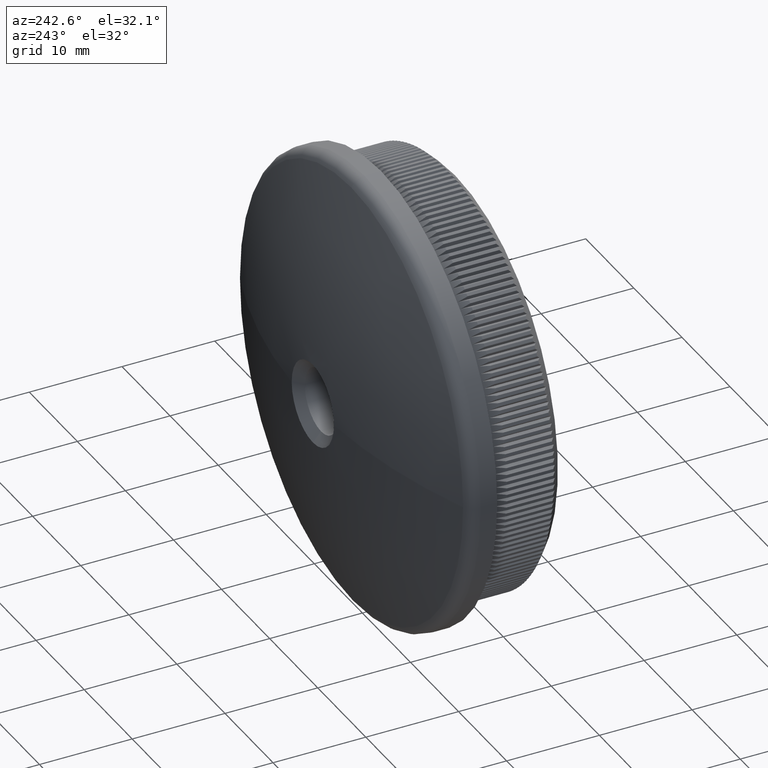
[diagram: clean part render]
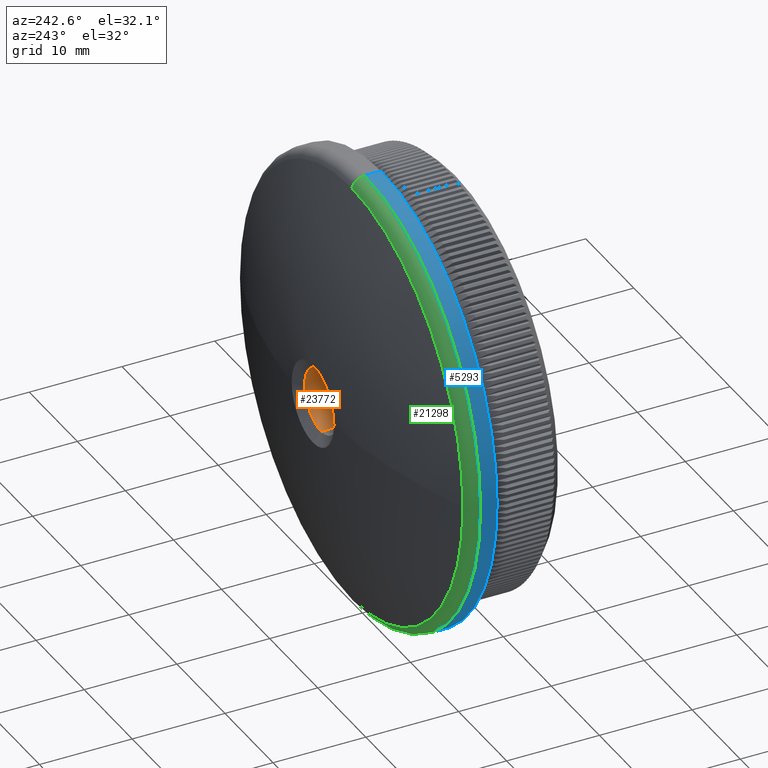
[diagram: same view with three faces highlighted in distinct colors, each labeled with its STEP entity id]
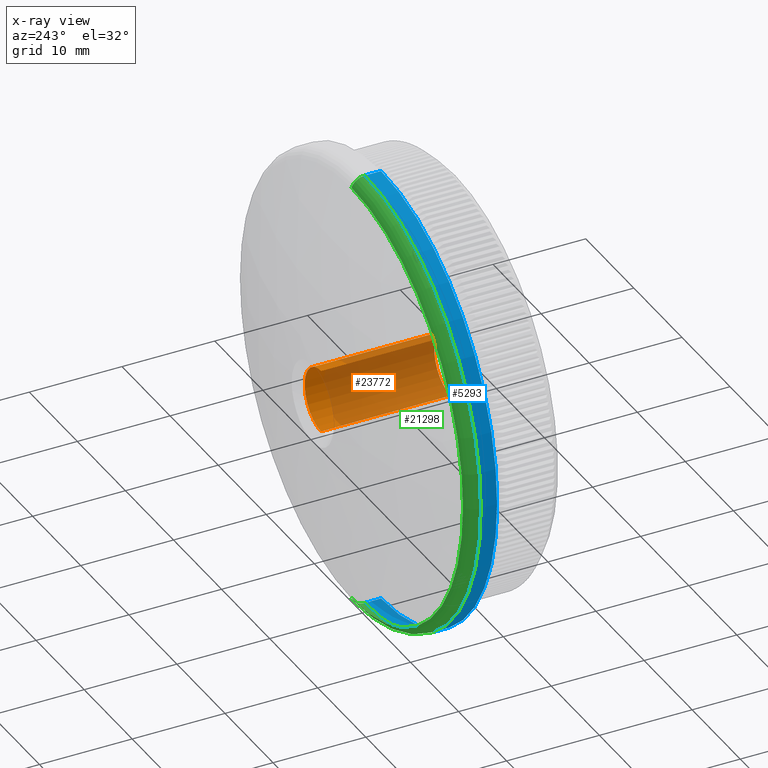
[diagram: x-ray of the same camera — body ghosted, the three highlighted faces saturated]
A machine part, auxiliary view with three faces highlighted in distinct colors.
The next image is the same camera in x-ray (body ghosted, the three faces saturated) — at least one of them is partly hidden behind the body in this view.
Their STEP definitions:

[orange] entity #23772 — the highlighted cylindrical surface (edge-blend (fillet) strip) has radius 3.4 mm, axis along (-0, -1, -0).
#2123 = CARTESIAN_POINT ( 'NONE',  ( 0.0000000000000000000, 14.45906987097148100, 0.0000000000000000000 ) ) ;
#3862 = VECTOR ( 'NONE', #17896, 1000.000000000000000 ) ;
#5364 = EDGE_CURVE ( 'NONE', #11681, #9426, #30022, .T. ) ;
#5418 = CARTESIAN_POINT ( 'NONE',  ( 0.0000000000000000000, 14.45906987097148100, -3.399999999999995500 ) ) ;
#6036 = EDGE_CURVE ( 'NONE', #11681, #20876, #31165, .T. ) ;
#7930 = LINE ( 'NONE', #29598, #30862 ) ;
#8613 = AXIS2_PLACEMENT_3D ( 'NONE', #21303, #25971, #15880 ) ;
#9426 = VERTEX_POINT ( 'NONE', #23400 ) ;
#10006 = DIRECTION ( 'NONE',  ( 0.0000000000000000000, 0.0000000000000000000, -1.000000000000000000 ) ) ;
#10114 = DIRECTION ( 'NONE',  ( 0.0000000000000000000, -1.000000000000000000, 0.0000000000000000000 ) ) ;
#10228 = CARTESIAN_POINT ( 'NONE',  ( 0.0000000000000000000, 0.4999999999999891800, 0.0000000000000000000 ) ) ;
#11625 = FACE_OUTER_BOUND ( 'NONE', #21661, .T. ) ;
#11681 = VERTEX_POINT ( 'NONE', #31079 ) ;
#12229 = DIRECTION ( 'NONE',  ( 0.0000000000000000000, 0.0000000000000000000, 1.000000000000000000 ) ) ;
#13011 = CARTESIAN_POINT ( 'NONE',  ( 0.0000000000000000000, 0.4999999999999891800, -3.399999999999995500 ) ) ;
#13640 = CIRCLE ( 'NONE', #26234, 3.399999999999995500 ) ;
#14278 = DIRECTION ( 'NONE',  ( -0.0000000000000000000, -1.000000000000000000, -0.0000000000000000000 ) ) ;
#14698 = AXIS2_PLACEMENT_3D ( 'NONE', #2123, #22336, #12229 ) ;
#15344 = CARTESIAN_POINT ( 'NONE',  ( 4.163799117100995600E-016, 0.0000000000000000000, 3.399999999999995500 ) ) ;
#15880 = DIRECTION ( 'NONE',  ( 0.0000000000000000000, 0.0000000000000000000, -1.000000000000000000 ) ) ;
#17159 = ORIENTED_EDGE ( 'NONE', *, *, #6036, .T. ) ;
#17896 = DIRECTION ( 'NONE',  ( -0.0000000000000000000, -1.000000000000000000, -0.0000000000000000000 ) ) ;
#20047 = ORIENTED_EDGE ( 'NONE', *, *, #5364, .F. ) ;
#20876 = VERTEX_POINT ( 'NONE', #5418 ) ;
#21303 = CARTESIAN_POINT ( 'NONE',  ( 0.0000000000000000000, 0.0000000000000000000, 0.0000000000000000000 ) ) ;
#21661 = EDGE_LOOP ( 'NONE', ( #20047, #17159, #26153, #24270 ) ) ;
#22336 = DIRECTION ( 'NONE',  ( 0.0000000000000000000, 1.000000000000000000, 0.0000000000000000000 ) ) ;
#22718 = EDGE_CURVE ( 'NONE', #23728, #9426, #13640, .T. ) ;
#23179 = CYLINDRICAL_SURFACE ( 'NONE', #8613, 3.399999999999995500 ) ;
#23400 = CARTESIAN_POINT ( 'NONE',  ( 4.163799117100995600E-016, 0.4999999999999891800, 3.399999999999995500 ) ) ;
#23728 = VERTEX_POINT ( 'NONE', #13011 ) ;
#23772 = ADVANCED_FACE ( 'NONE', ( #11625 ), #23179, .F. ) ;
#24270 = ORIENTED_EDGE ( 'NONE', *, *, #22718, .T. ) ;
#25971 = DIRECTION ( 'NONE',  ( -0.0000000000000000000, -1.000000000000000000, -0.0000000000000000000 ) ) ;
#26153 = ORIENTED_EDGE ( 'NONE', *, *, #26416, .T. ) ;
#26234 = AXIS2_PLACEMENT_3D ( 'NONE', #10228, #10114, #10006 ) ;
#26416 = EDGE_CURVE ( 'NONE', #20876, #23728, #7930, .T. ) ;
#29598 = CARTESIAN_POINT ( 'NONE',  ( 0.0000000000000000000, 0.0000000000000000000, -3.399999999999995500 ) ) ;
#30022 = LINE ( 'NONE', #15344, #3862 ) ;
#30862 = VECTOR ( 'NONE', #14278, 1000.000000000000000 ) ;
#31079 = CARTESIAN_POINT ( 'NONE',  ( 4.163799117100995600E-016, 14.45906987097148100, 3.399999999999995500 ) ) ;
#31165 = CIRCLE ( 'NONE', #14698, 3.399999999999995500 ) ;

[blue] entity #5293 — the highlighted cylindrical surface (partial cylindrical patch) has radius 24.15 mm, axis along (-0, -1, -0).
#2863 = CARTESIAN_POINT ( 'NONE',  ( 2.957522019940858300E-015, 0.0000000000000000000, 24.15000000000000200 ) ) ;
#2894 = VERTEX_POINT ( 'NONE', #6538 ) ;
#3882 = VERTEX_POINT ( 'NONE', #9230 ) ;
#4821 = DIRECTION ( 'NONE',  ( 0.0000000000000000000, 0.0000000000000000000, -1.000000000000000000 ) ) ;
#4911 = LINE ( 'NONE', #24541, #20361 ) ;
#5293 = ADVANCED_FACE ( 'NONE', ( #27313 ), #30053, .T. ) ;
#5527 = DIRECTION ( 'NONE',  ( -0.0000000000000000000, -1.000000000000000000, -0.0000000000000000000 ) ) ;
#6538 = CARTESIAN_POINT ( 'NONE',  ( 0.0000000000000000000, 8.000000000000000000, -24.14999999999999900 ) ) ;
#8364 = EDGE_CURVE ( 'NONE', #8538, #2894, #20417, .T. ) ;
#8524 = CARTESIAN_POINT ( 'NONE',  ( 0.0000000000000000000, 9.780020886796899400, -24.15000000000000200 ) ) ;
#8538 = VERTEX_POINT ( 'NONE', #29230 ) ;
#9230 = CARTESIAN_POINT ( 'NONE',  ( 2.957522019940858300E-015, 9.780020886796899400, 24.15000000000000200 ) ) ;
#10627 = CARTESIAN_POINT ( 'NONE',  ( 0.0000000000000000000, 9.780020886796899400, 0.0000000000000000000 ) ) ;
#10872 = EDGE_CURVE ( 'NONE', #3882, #32610, #21547, .T. ) ;
#11048 = DIRECTION ( 'NONE',  ( -0.0000000000000000000, -1.000000000000000000, -0.0000000000000000000 ) ) ;
#11953 = EDGE_LOOP ( 'NONE', ( #14062, #12663, #30805, #23073 ) ) ;
#12663 = ORIENTED_EDGE ( 'NONE', *, *, #10872, .T. ) ;
#13197 = AXIS2_PLACEMENT_3D ( 'NONE', #15450, #23028, #4821 ) ;
#14062 = ORIENTED_EDGE ( 'NONE', *, *, #31795, .F. ) ;
#15450 = CARTESIAN_POINT ( 'NONE',  ( 0.0000000000000000000, 0.0000000000000000000, 0.0000000000000000000 ) ) ;
#17987 = VECTOR ( 'NONE', #5527, 1000.000000000000000 ) ;
#20066 = AXIS2_PLACEMENT_3D ( 'NONE', #25823, #28263, #25626 ) ;
#20361 = VECTOR ( 'NONE', #24641, 1000.000000000000000 ) ;
#20417 = CIRCLE ( 'NONE', #20066, 24.14999999999999900 ) ;
#21547 = CIRCLE ( 'NONE', #24151, 24.15000000000000200 ) ;
#23028 = DIRECTION ( 'NONE',  ( -0.0000000000000000000, -1.000000000000000000, -0.0000000000000000000 ) ) ;
#23073 = ORIENTED_EDGE ( 'NONE', *, *, #8364, .F. ) ;
#23571 = LINE ( 'NONE', #2863, #17987 ) ;
#23935 = EDGE_CURVE ( 'NONE', #32610, #2894, #4911, .T. ) ;
#24151 = AXIS2_PLACEMENT_3D ( 'NONE', #10627, #11048, #28774 ) ;
#24541 = CARTESIAN_POINT ( 'NONE',  ( 0.0000000000000000000, 0.0000000000000000000, -24.15000000000000200 ) ) ;
#24641 = DIRECTION ( 'NONE',  ( -0.0000000000000000000, -1.000000000000000000, -0.0000000000000000000 ) ) ;
#25626 = DIRECTION ( 'NONE',  ( 0.0000000000000000000, 0.0000000000000000000, -1.000000000000000000 ) ) ;
#25823 = CARTESIAN_POINT ( 'NONE',  ( 0.0000000000000000000, 8.000000000000000000, 0.0000000000000000000 ) ) ;
#27313 = FACE_OUTER_BOUND ( 'NONE', #11953, .T. ) ;
#28263 = DIRECTION ( 'NONE',  ( -0.0000000000000000000, -1.000000000000000000, -0.0000000000000000000 ) ) ;
#28774 = DIRECTION ( 'NONE',  ( 0.0000000000000000000, 0.0000000000000000000, -1.000000000000000000 ) ) ;
#29230 = CARTESIAN_POINT ( 'NONE',  ( 2.957522019940858300E-015, 8.000000000000000000, 24.14999999999999900 ) ) ;
#30053 = CYLINDRICAL_SURFACE ( 'NONE', #13197, 24.15000000000000200 ) ;
#30805 = ORIENTED_EDGE ( 'NONE', *, *, #23935, .T. ) ;
#31795 = EDGE_CURVE ( 'NONE', #3882, #8538, #23571, .T. ) ;
#32610 = VERTEX_POINT ( 'NONE', #8524 ) ;

[green] entity #21298 — the highlighted toroidal blend (fillet) surface has major radius 22.65 mm and minor (blend) radius 1.5 mm.
#710 = DIRECTION ( 'NONE',  ( 0.0000000000000000000, 1.000000000000000000, 0.0000000000000000000 ) ) ;
#1035 = EDGE_CURVE ( 'NONE', #9296, #25562, #1549, .T. ) ;
#1549 = CIRCLE ( 'NONE', #30585, 23.19018648117216600 ) ;
#3181 = DIRECTION ( 'NONE',  ( 0.0000000000000000000, 0.0000000000000000000, -1.000000000000000000 ) ) ;
#3301 = CARTESIAN_POINT ( 'NONE',  ( 2.898750392260314800E-015, 11.17937736945556700, 23.19018648117216600 ) ) ;
#3882 = VERTEX_POINT ( 'NONE', #9230 ) ;
#4641 = DIRECTION ( 'NONE',  ( -1.000000000000000000, 0.0000000000000000000, 0.0000000000000000000 ) ) ;
#5216 = AXIS2_PLACEMENT_3D ( 'NONE', #24935, #4641, #24712 ) ;
#5636 = AXIS2_PLACEMENT_3D ( 'NONE', #18991, #16352, #8824 ) ;
#8519 = CIRCLE ( 'NONE', #5216, 1.500000000000001300 ) ;
#8524 = CARTESIAN_POINT ( 'NONE',  ( 0.0000000000000000000, 9.780020886796899400, -24.15000000000000200 ) ) ;
#8697 = EDGE_CURVE ( 'NONE', #9296, #32610, #8519, .T. ) ;
#8824 = DIRECTION ( 'NONE',  ( -1.224646799147352000E-016, 0.0000000000000000000, -1.000000000000000000 ) ) ;
#9230 = CARTESIAN_POINT ( 'NONE',  ( 2.957522019940858300E-015, 9.780020886796899400, 24.15000000000000200 ) ) ;
#9296 = VERTEX_POINT ( 'NONE', #22873 ) ;
#9408 = VERTEX_POINT ( 'NONE', #3301 ) ;
#9956 = EDGE_CURVE ( 'NONE', #9408, #3882, #17985, .T. ) ;
#10400 = CARTESIAN_POINT ( 'NONE',  ( -23.19018648117216600, 11.17937736945556400, 2.839978764579771300E-015 ) ) ;
#10627 = CARTESIAN_POINT ( 'NONE',  ( 0.0000000000000000000, 9.780020886796899400, 0.0000000000000000000 ) ) ;
#10658 = ORIENTED_EDGE ( 'NONE', *, *, #9956, .F. ) ;
#10872 = EDGE_CURVE ( 'NONE', #3882, #32610, #21547, .T. ) ;
#11048 = DIRECTION ( 'NONE',  ( -0.0000000000000000000, -1.000000000000000000, -0.0000000000000000000 ) ) ;
#11672 = DIRECTION ( 'NONE',  ( 0.0000000000000000000, 1.000000000000000000, 0.0000000000000000000 ) ) ;
#12301 = AXIS2_PLACEMENT_3D ( 'NONE', #26748, #11672, #31790 ) ;
#12489 = ORIENTED_EDGE ( 'NONE', *, *, #10872, .F. ) ;
#14490 = CIRCLE ( 'NONE', #12301, 23.19018648117216600 ) ;
#15490 = CARTESIAN_POINT ( 'NONE',  ( 0.0000000000000000000, 11.17937736945556700, 0.0000000000000000000 ) ) ;
#15768 = DIRECTION ( 'NONE',  ( -0.0000000000000000000, -1.000000000000000000, -0.0000000000000000000 ) ) ;
#16024 = EDGE_LOOP ( 'NONE', ( #10658, #17287, #21413, #20982, #12489 ) ) ;
#16352 = DIRECTION ( 'NONE',  ( 1.000000000000000000, 0.0000000000000000000, -1.224646799147353200E-016 ) ) ;
#17287 = ORIENTED_EDGE ( 'NONE', *, *, #29491, .F. ) ;
#17985 = CIRCLE ( 'NONE', #5636, 1.500000000000001300 ) ;
#18991 = CARTESIAN_POINT ( 'NONE',  ( 2.773825000068754800E-015, 9.780020886796899400, 22.64999999999999900 ) ) ;
#20982 = ORIENTED_EDGE ( 'NONE', *, *, #8697, .T. ) ;
#21298 = ADVANCED_FACE ( 'NONE', ( #26009 ), #26805, .T. ) ;
#21413 = ORIENTED_EDGE ( 'NONE', *, *, #1035, .F. ) ;
#21547 = CIRCLE ( 'NONE', #24151, 24.15000000000000200 ) ;
#22873 = CARTESIAN_POINT ( 'NONE',  ( 0.0000000000000000000, 11.17937736945556700, -23.19018648117216600 ) ) ;
#23260 = AXIS2_PLACEMENT_3D ( 'NONE', #30171, #15768, #28186 ) ;
#24151 = AXIS2_PLACEMENT_3D ( 'NONE', #10627, #11048, #28774 ) ;
#24712 = DIRECTION ( 'NONE',  ( 0.0000000000000000000, 0.0000000000000000000, 1.000000000000000000 ) ) ;
#24935 = CARTESIAN_POINT ( 'NONE',  ( 0.0000000000000000000, 9.780020886796899400, -22.64999999999999900 ) ) ;
#25562 = VERTEX_POINT ( 'NONE', #10400 ) ;
#26009 = FACE_OUTER_BOUND ( 'NONE', #16024, .T. ) ;
#26748 = CARTESIAN_POINT ( 'NONE',  ( 0.0000000000000000000, 11.17937736945556700, 0.0000000000000000000 ) ) ;
#26805 = TOROIDAL_SURFACE ( 'NONE', #23260, 22.64999999999999900, 1.500000000000000000 ) ;
#28186 = DIRECTION ( 'NONE',  ( 0.0000000000000000000, 0.0000000000000000000, -1.000000000000000000 ) ) ;
#28774 = DIRECTION ( 'NONE',  ( 0.0000000000000000000, 0.0000000000000000000, -1.000000000000000000 ) ) ;
#29491 = EDGE_CURVE ( 'NONE', #25562, #9408, #14490, .T. ) ;
#30171 = CARTESIAN_POINT ( 'NONE',  ( 0.0000000000000000000, 9.780020886796899400, 0.0000000000000000000 ) ) ;
#30585 = AXIS2_PLACEMENT_3D ( 'NONE', #15490, #710, #3181 ) ;
#31790 = DIRECTION ( 'NONE',  ( 0.0000000000000000000, 0.0000000000000000000, -1.000000000000000000 ) ) ;
#32610 = VERTEX_POINT ( 'NONE', #8524 ) ;